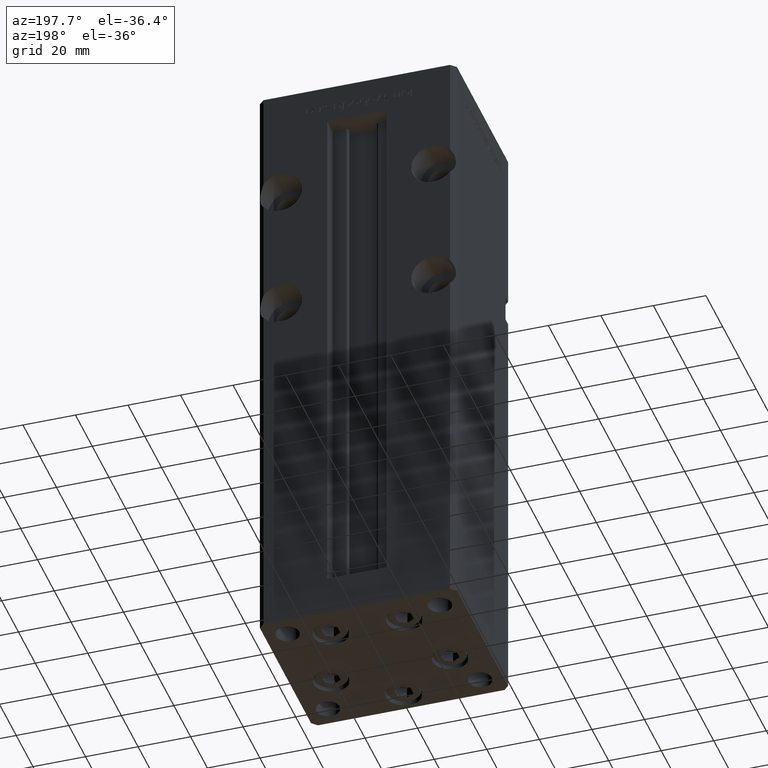
[diagram: clean part render]
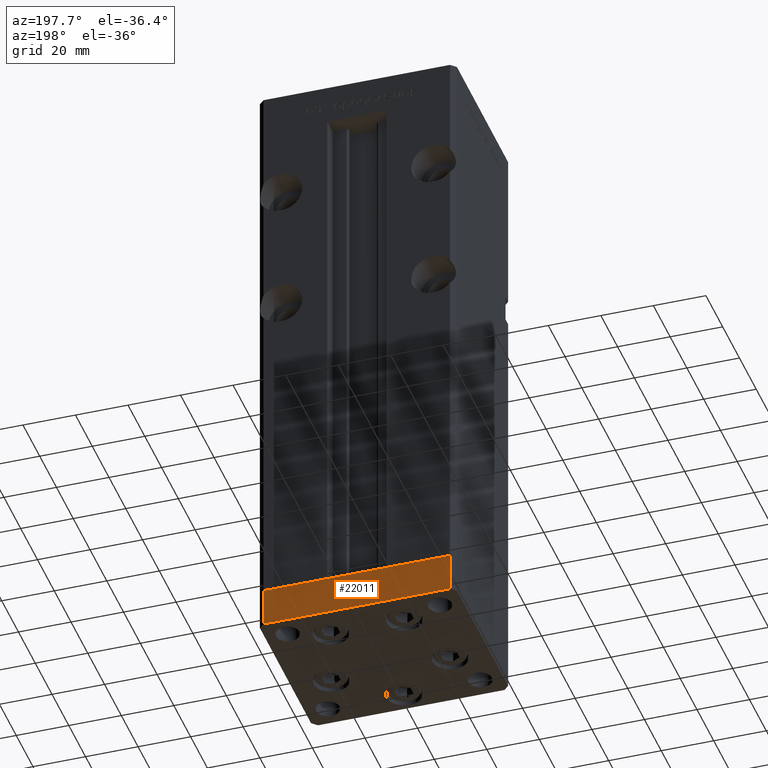
[diagram: same view with one face highlighted and labeled with its STEP entity id]
A machine part, auxiliary view. The second image highlights one B-rep face of the part: STEP entity #22011.
In plain terms, the highlighted planar face has unit normal (-0, 1, 0).
Its self-contained STEP definition (entity closure, byte-faithful):
#161 = ORIENTED_EDGE ( 'NONE', *, *, #12841, .F. ) ;
#411 = VERTEX_POINT ( 'NONE', #7418 ) ;
#1282 = VERTEX_POINT ( 'NONE', #3104 ) ;
#1576 = VECTOR ( 'NONE', #37841, 1000.000000000000000 ) ;
#3104 = CARTESIAN_POINT ( 'NONE',  ( 35.49999999999992184, 32.50000000000000711, 0.000000000000000000 ) ) ;
#5669 = CARTESIAN_POINT ( 'NONE',  ( -35.50000000000002842, 32.49999999999999289, -15.00000000000000000 ) ) ;
#5803 = PLANE ( 'NONE',  #43509 ) ;
#6062 = CARTESIAN_POINT ( 'NONE',  ( 35.49999999999992184, 32.50000000000000711, -15.00000000000000000 ) ) ;
#7115 = EDGE_LOOP ( 'NONE', ( #17940, #161, #20203, #33069 ) ) ;
#7418 = CARTESIAN_POINT ( 'NONE',  ( -35.50000000000002842, 32.49999999999999289, 0.000000000000000000 ) ) ;
#9493 = VECTOR ( 'NONE', #34192, 1000.000000000000000 ) ;
#10655 = VERTEX_POINT ( 'NONE', #32185 ) ;
#11708 = CARTESIAN_POINT ( 'NONE',  ( 35.49999999999992184, 32.50000000000000711, -15.00000000000000000 ) ) ;
#12841 = EDGE_CURVE ( 'NONE', #24677, #1282, #48297, .T. ) ;
#13407 = LINE ( 'NONE', #21471, #1576 ) ;
#17814 = CARTESIAN_POINT ( 'NONE',  ( 35.49999999999992184, 32.50000000000000711, 0.000000000000000000 ) ) ;
#17940 = ORIENTED_EDGE ( 'NONE', *, *, #46073, .F. ) ;
#20203 = ORIENTED_EDGE ( 'NONE', *, *, #36234, .T. ) ;
#21471 = CARTESIAN_POINT ( 'NONE',  ( 35.49999999999992184, 32.50000000000000711, -15.00000000000000000 ) ) ;
#21802 = DIRECTION ( 'NONE',  ( 0.000000000000000000, 0.000000000000000000, 1.000000000000000000 ) ) ;
#22011 = ADVANCED_FACE ( 'NONE', ( #44146 ), #5803, .T. ) ;
#22196 = DIRECTION ( 'NONE',  ( -1.954618001100629052E-16, 1.000000000000000000, 0.000000000000000000 ) ) ;
#22459 = DIRECTION ( 'NONE',  ( -1.000000000000000000, -1.954618001100629052E-16, 0.000000000000000000 ) ) ;
#23287 = CARTESIAN_POINT ( 'NONE',  ( 35.49999999999992184, 32.50000000000000711, -15.00000000000000000 ) ) ;
#24677 = VERTEX_POINT ( 'NONE', #11708 ) ;
#25185 = VECTOR ( 'NONE', #39684, 1000.000000000000000 ) ;
#32185 = CARTESIAN_POINT ( 'NONE',  ( -35.50000000000002842, 32.49999999999999289, -15.00000000000000000 ) ) ;
#33069 = ORIENTED_EDGE ( 'NONE', *, *, #51053, .T. ) ;
#34192 = DIRECTION ( 'NONE',  ( -1.000000000000000000, -1.954618001100629052E-16, 0.000000000000000000 ) ) ;
#36234 = EDGE_CURVE ( 'NONE', #24677, #10655, #13407, .T. ) ;
#37841 = DIRECTION ( 'NONE',  ( -1.000000000000000000, -1.954618001100629052E-16, 0.000000000000000000 ) ) ;
#39684 = DIRECTION ( 'NONE',  ( 0.000000000000000000, 0.000000000000000000, 1.000000000000000000 ) ) ;
#41693 = LINE ( 'NONE', #5669, #44829 ) ;
#41737 = LINE ( 'NONE', #17814, #9493 ) ;
#43509 = AXIS2_PLACEMENT_3D ( 'NONE', #6062, #22196, #22459 ) ;
#44146 = FACE_OUTER_BOUND ( 'NONE', #7115, .T. ) ;
#44829 = VECTOR ( 'NONE', #21802, 1000.000000000000000 ) ;
#46073 = EDGE_CURVE ( 'NONE', #1282, #411, #41737, .T. ) ;
#48297 = LINE ( 'NONE', #23287, #25185 ) ;
#51053 = EDGE_CURVE ( 'NONE', #10655, #411, #41693, .T. ) ;